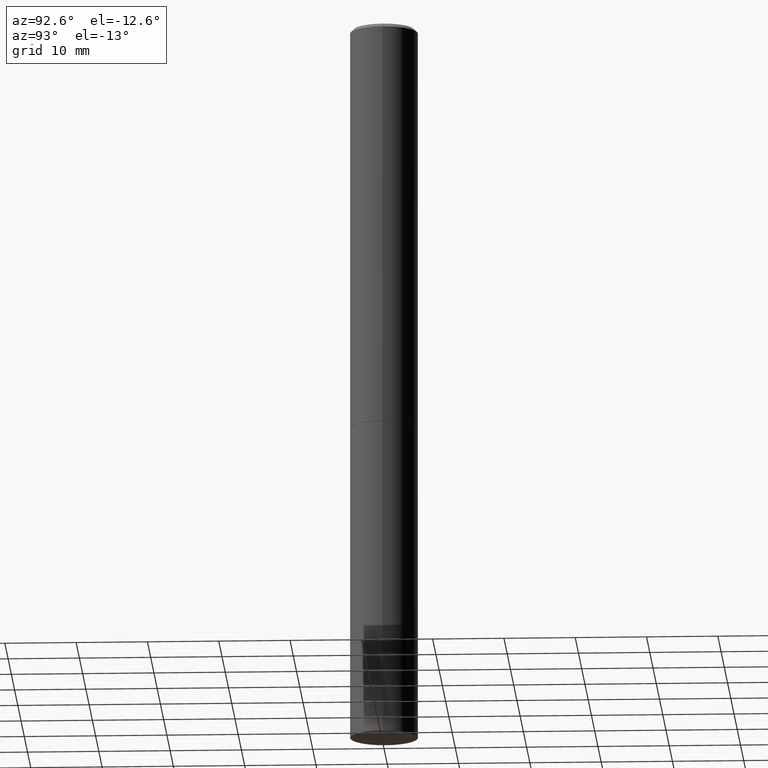
[diagram: clean part render]
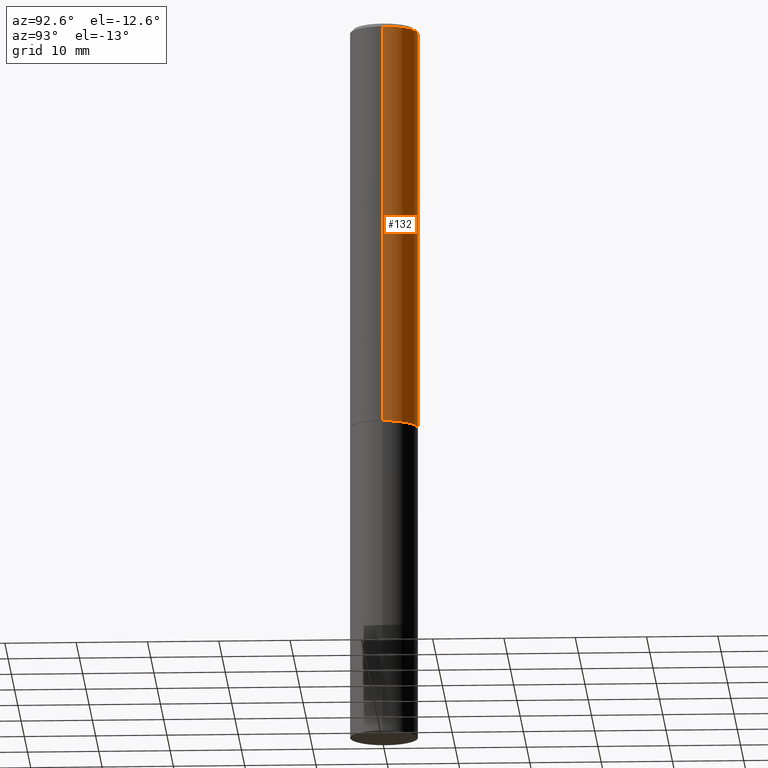
[diagram: same view with one face highlighted and labeled with its STEP entity id]
A machine part, auxiliary view. The second image highlights one B-rep face of the part: STEP entity #132.
In plain terms, the highlighted cylindrical surface (edge-blend (fillet) strip) has radius 4.7625 mm, axis along (-0, 0, 1).
Its self-contained STEP definition (entity closure, byte-faithful):
#9 = CIRCLE ( 'NONE', #360, 0.1875000000000000278 ) ;
#18 = VERTEX_POINT ( 'NONE', #45 ) ;
#19 = DIRECTION ( 'NONE',  ( -2.445468806185136597E-29, 3.491481338843145583E-15, 1.000000000000000000 ) ) ;
#25 = AXIS2_PLACEMENT_3D ( 'NONE', #264, #19, #75 ) ;
#28 = CARTESIAN_POINT ( 'NONE',  ( 0.1874999999999998890, -1.309305502066174022E-15, 9.142831454617374006E-30 ) ) ;
#43 = CIRCLE ( 'NONE', #25, 0.1874999999999997502 ) ;
#45 = CARTESIAN_POINT ( 'NONE',  ( 0.1874999999999997502, -1.356173001359023494E-15, -0.02000000000000004205 ) ) ;
#67 = LINE ( 'NONE', #28, #292 ) ;
#75 = DIRECTION ( 'NONE',  ( 1.000000000000000000, -6.982962677686265133E-15, 0.000000000000000000 ) ) ;
#81 = CYLINDRICAL_SURFACE ( 'NONE', #107, 0.1874999999999998890 ) ;
#92 = VERTEX_POINT ( 'NONE', #159 ) ;
#97 = CARTESIAN_POINT ( 'NONE',  ( 0.1875000000000000278, -9.161647033124408872E-15, -2.249000000000000110 ) ) ;
#100 = CARTESIAN_POINT ( 'NONE',  ( 5.499859345110371740E-29, -7.852341531058233864E-15, -2.249000000000000110 ) ) ;
#107 = AXIS2_PLACEMENT_3D ( 'NONE', #190, #313, #280 ) ;
#132 = ADVANCED_FACE ( 'NONE', ( #333 ), #81, .T. ) ;
#145 = DIRECTION ( 'NONE',  ( -2.445468806185136597E-29, 3.491481338843145583E-15, 1.000000000000000000 ) ) ;
#153 = DIRECTION ( 'NONE',  ( 1.000000000000000000, -6.982962677686261189E-15, 0.000000000000000000 ) ) ;
#159 = CARTESIAN_POINT ( 'NONE',  ( -0.1875000000000000278, -2.628817949367357971E-15, -2.249000000000000110 ) ) ;
#174 = CARTESIAN_POINT ( 'NONE',  ( -0.1874999999999998890, 1.332267629550187060E-15, -9.223003294227942385E-30 ) ) ;
#190 = CARTESIAN_POINT ( 'NONE',  ( 0.000000000000000000, 0.000000000000000000, 0.000000000000000000 ) ) ;
#194 = EDGE_LOOP ( 'NONE', ( #198, #350, #224, #345 ) ) ;
#198 = ORIENTED_EDGE ( 'NONE', *, *, #226, .T. ) ;
#204 = LINE ( 'NONE', #174, #274 ) ;
#219 = DIRECTION ( 'NONE',  ( -2.445468806185136877E-29, 3.491481338843145188E-15, 1.000000000000000000 ) ) ;
#224 = ORIENTED_EDGE ( 'NONE', *, *, #308, .F. ) ;
#226 = EDGE_CURVE ( 'NONE', #320, #92, #9, .T. ) ;
#246 = EDGE_CURVE ( 'NONE', #92, #326, #204, .T. ) ;
#264 = CARTESIAN_POINT ( 'NONE',  ( 4.890937612370283668E-31, -6.982962677686305168E-17, -0.02000000000000004205 ) ) ;
#274 = VECTOR ( 'NONE', #304, 39.37007874015748143 ) ;
#280 = DIRECTION ( 'NONE',  ( 1.000000000000000000, -6.982962677686265922E-15, 4.876176775795935793E-29 ) ) ;
#292 = VECTOR ( 'NONE', #219, 39.37007874015748143 ) ;
#304 = DIRECTION ( 'NONE',  ( -2.445468806185136877E-29, 3.491481338843145188E-15, 1.000000000000000000 ) ) ;
#308 = EDGE_CURVE ( 'NONE', #18, #326, #43, .T. ) ;
#313 = DIRECTION ( 'NONE',  ( -2.445468806185136597E-29, 3.491481338843145583E-15, 1.000000000000000000 ) ) ;
#320 = VERTEX_POINT ( 'NONE', #97 ) ;
#326 = VERTEX_POINT ( 'NONE', #327 ) ;
#327 = CARTESIAN_POINT ( 'NONE',  ( -0.1874999999999997502, 1.239475875289309935E-15, -0.02000000000000004205 ) ) ;
#333 = FACE_OUTER_BOUND ( 'NONE', #194, .T. ) ;
#345 = ORIENTED_EDGE ( 'NONE', *, *, #366, .F. ) ;
#350 = ORIENTED_EDGE ( 'NONE', *, *, #246, .T. ) ;
#360 = AXIS2_PLACEMENT_3D ( 'NONE', #100, #145, #153 ) ;
#366 = EDGE_CURVE ( 'NONE', #320, #18, #67, .T. ) ;